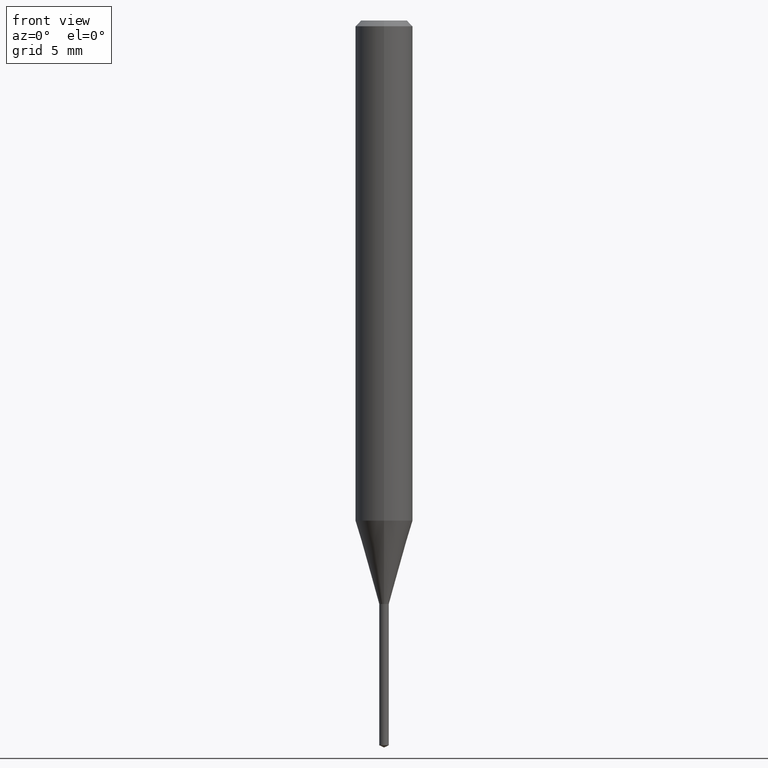
[diagram: clean part render]
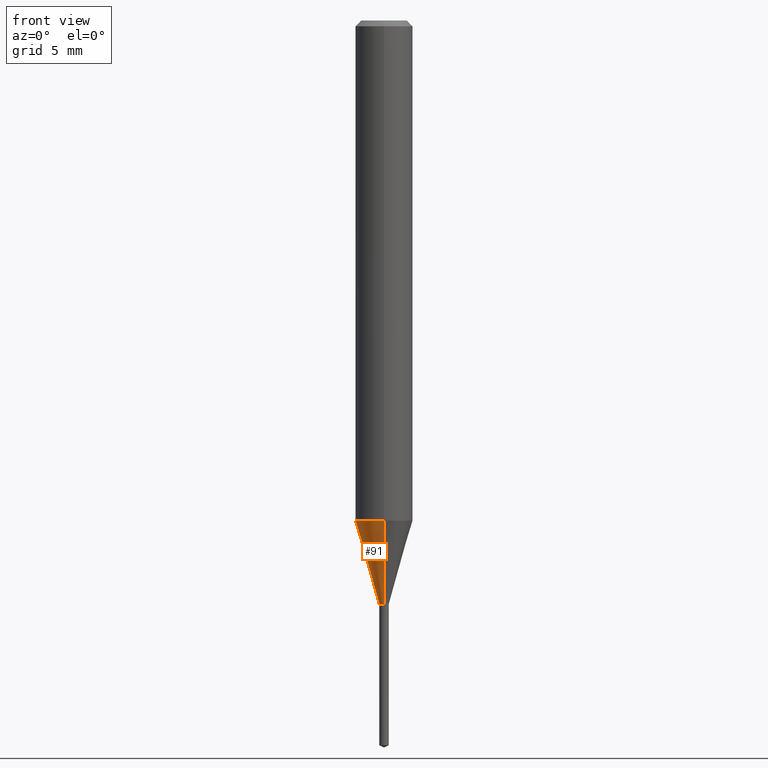
[diagram: same view with one face highlighted and labeled with its STEP entity id]
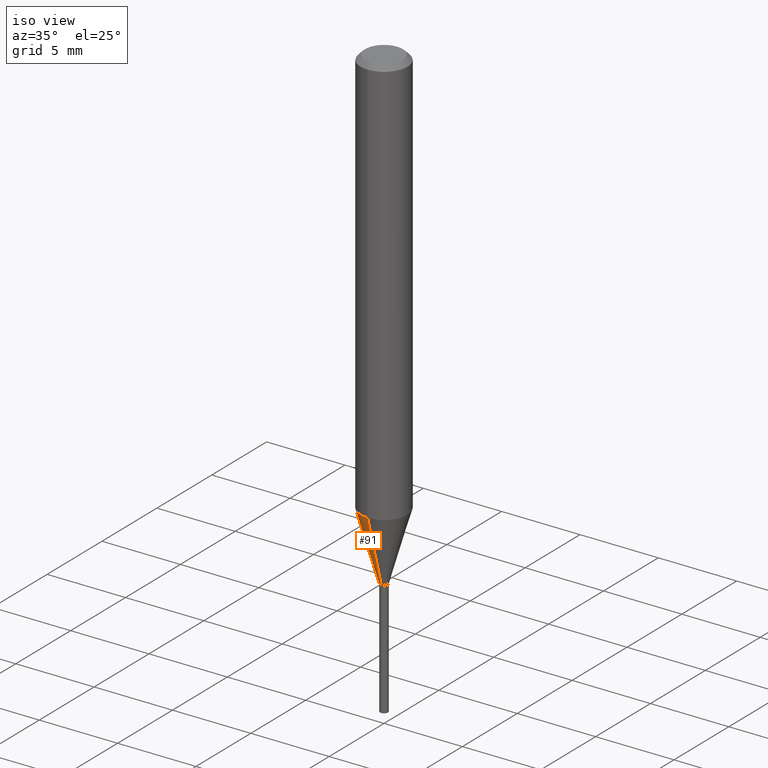
[diagram: same view with one face highlighted and labeled with its STEP entity id]
A machine part, front view. The second image highlights one B-rep face of the part: STEP entity #91.
A second angle (iso view) of the same face is appended — the face is thin or edge-on in the first view.
In plain terms, the highlighted conical surface has half-angle 16.004 deg.
Its self-contained STEP definition (entity closure, byte-faithful):
#91=ADVANCED_FACE('',(#226),#227,.T.);
#101=VERTEX_POINT('',#240);
#111=EDGE_CURVE('',#101,#179,#252,.T.);
#125=EDGE_CURVE('',#127,#135,#268,.T.);
#127=VERTEX_POINT('',#270);
#135=VERTEX_POINT('',#278);
#143=EDGE_CURVE('',#101,#135,#288,.T.);
#179=VERTEX_POINT('',#326);
#183=EDGE_CURVE('',#179,#127,#330,.T.);
#226=FACE_OUTER_BOUND('',#368,.T.);
#227=CONICAL_SURFACE('',#369,0.875,0.2793216271515);
#240=CARTESIAN_POINT('',(3.06151588455594E-017,-0.25,-30.4991339745962));
#252=LINE('',#399,#400);
#268=LINE('',#419,#420);
#270=CARTESIAN_POINT('',(0.0,1.5,-26.141));
#278=CARTESIAN_POINT('',(0.0,0.25,-30.4991339745962));
#288=CIRCLE('',#445,0.25);
#326=CARTESIAN_POINT('',(1.83690953073357E-016,-1.5,-26.141));
#330=CIRCLE('',#503,1.5);
#368=EDGE_LOOP('',(#536,#537,#538,#539));
#369=AXIS2_PLACEMENT_3D('',#540,#541,#542);
#399=CARTESIAN_POINT('',(1.07153055959458E-016,-0.875,-28.3200669872981));
#400=VECTOR('',#590,1.0);
#419=CARTESIAN_POINT('',(-1.07153055959458E-016,0.875,-28.3200669872981));
#420=VECTOR('',#609,1.0);
#445=AXIS2_PLACEMENT_3D('',#632,#633,#634);
#503=AXIS2_PLACEMENT_3D('',#675,#676,#677);
#536=ORIENTED_EDGE('',*,*,#125,.T.);
#537=ORIENTED_EDGE('',*,*,#143,.F.);
#538=ORIENTED_EDGE('',*,*,#111,.T.);
#539=ORIENTED_EDGE('',*,*,#183,.T.);
#540=CARTESIAN_POINT('',(0.0,0.0,-28.3200669872981));
#541=DIRECTION('',(-0.0,-0.0,1.0));
#542=DIRECTION('',(0.0,1.0,0.0));
#590=DIRECTION('',(3.37628418430251E-017,-0.275703631110853,0.961242689330999));
#609=DIRECTION('',(3.37628418430251E-017,-0.275703631110853,-0.961242689330999));
#632=CARTESIAN_POINT('',(0.0,0.0,-30.4991339745962));
#633=DIRECTION('',(0.0,0.0,-1.0));
#634=DIRECTION('',(0.0,1.0,0.0));
#675=CARTESIAN_POINT('',(0.0,0.0,-26.141));
#676=DIRECTION('',(0.0,0.0,-1.0));
#677=DIRECTION('',(0.0,1.0,0.0));